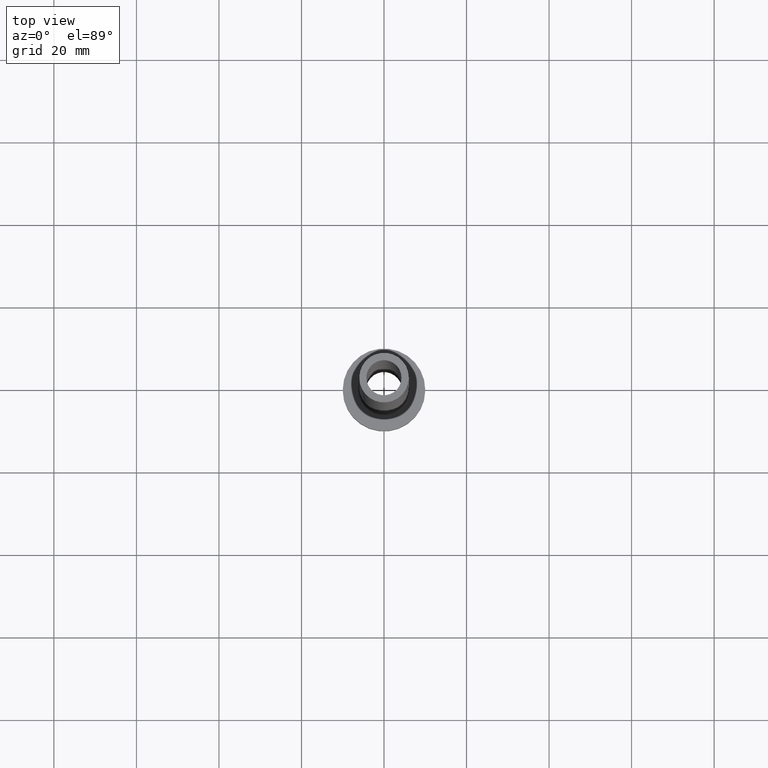
[diagram: clean part render]
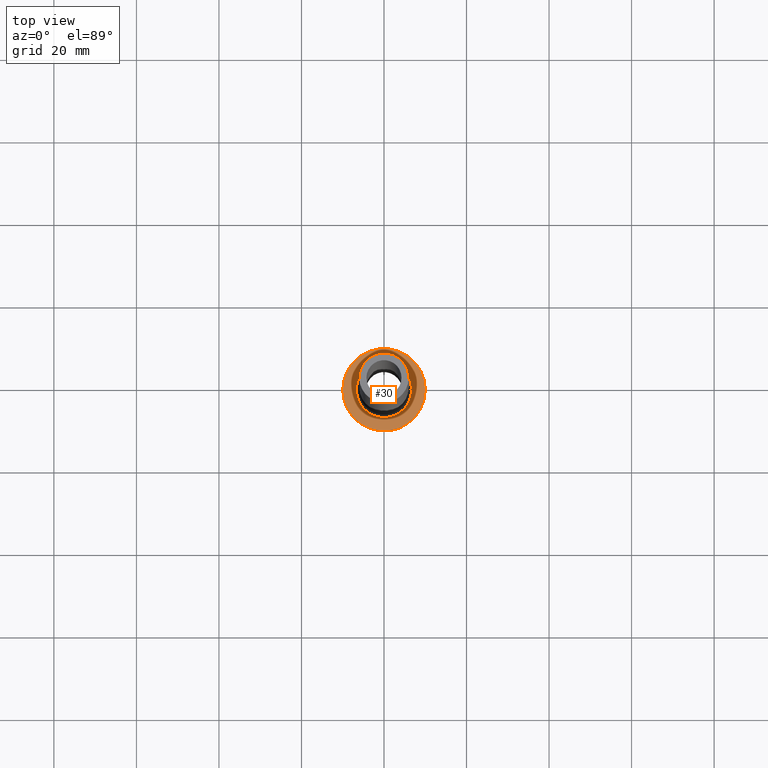
[diagram: same view with one face highlighted and labeled with its STEP entity id]
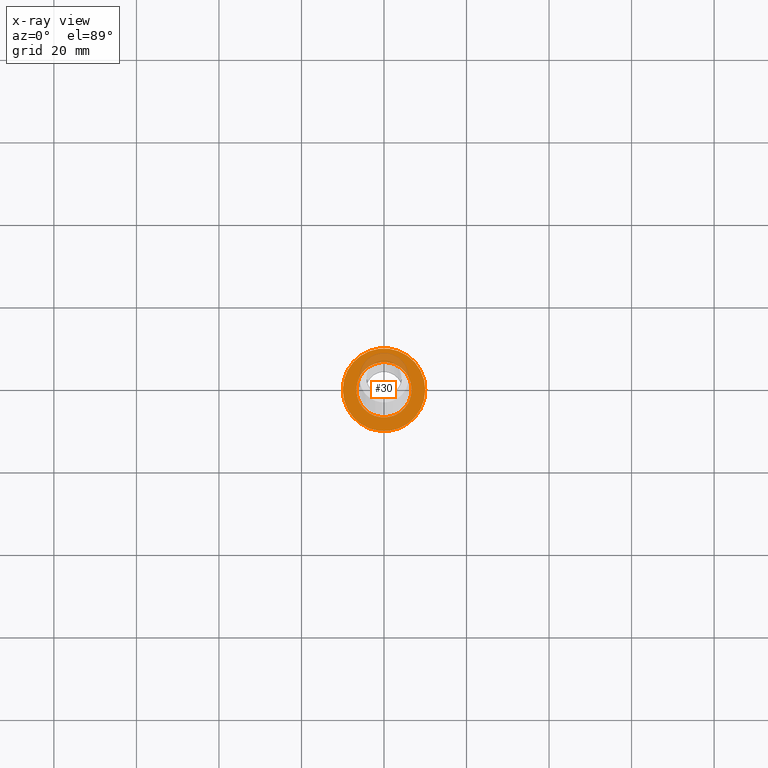
[diagram: x-ray of the same camera — body ghosted, the highlighted face saturated]
A machine part, top view. The second image highlights one B-rep face of the part: STEP entity #30.
The next image is the same camera in x-ray: the body ghosted, the highlighted face saturated — about 14% of this face is hidden behind the body in this view.
In plain terms, the highlighted planar face has unit normal (0, 0, 1).
Its self-contained STEP definition (entity closure, byte-faithful):
#7 = CARTESIAN_POINT ( 'NONE',  ( -6.700000000000001066, 8.205133554287267548E-16, 7.000000000000006217 ) ) ;
#10 = CARTESIAN_POINT ( 'NONE',  ( 10.00000000000000000, 1.224646799147353256E-15, 7.000000000000000000 ) ) ;
#28 = AXIS2_PLACEMENT_3D ( 'NONE', #337, #165, #298 ) ;
#30 = ADVANCED_FACE ( 'NONE', ( #255, #77 ), #363, .T. ) ;
#51 = CIRCLE ( 'NONE', #28, 10.00000000000000000 ) ;
#55 = VERTEX_POINT ( 'NONE', #222 ) ;
#71 = ORIENTED_EDGE ( 'NONE', *, *, #264, .T. ) ;
#77 = FACE_OUTER_BOUND ( 'NONE', #125, .T. ) ;
#79 = DIRECTION ( 'NONE',  ( 0.000000000000000000, 0.000000000000000000, 1.000000000000000000 ) ) ;
#81 = CARTESIAN_POINT ( 'NONE',  ( -10.00000000000000000, 0.000000000000000000, 7.000000000000000000 ) ) ;
#95 = VERTEX_POINT ( 'NONE', #81 ) ;
#109 = CIRCLE ( 'NONE', #426, 6.700000000000001066 ) ;
#125 = EDGE_LOOP ( 'NONE', ( #346, #278 ) ) ;
#136 = DIRECTION ( 'NONE',  ( 1.000000000000000000, 0.000000000000000000, 0.000000000000000000 ) ) ;
#165 = DIRECTION ( 'NONE',  ( 0.000000000000000000, 0.000000000000000000, 1.000000000000000000 ) ) ;
#170 = VERTEX_POINT ( 'NONE', #10 ) ;
#172 = CARTESIAN_POINT ( 'NONE',  ( 0.000000000000000000, 0.000000000000000000, 7.000000000000000000 ) ) ;
#184 = DIRECTION ( 'NONE',  ( 1.000000000000000000, 0.000000000000000000, -0.000000000000000000 ) ) ;
#222 = CARTESIAN_POINT ( 'NONE',  ( 6.700000000000001066, 0.000000000000000000, 7.000000000000006217 ) ) ;
#228 = AXIS2_PLACEMENT_3D ( 'NONE', #361, #394, #184 ) ;
#242 = EDGE_CURVE ( 'NONE', #95, #170, #51, .T. ) ;
#251 = CARTESIAN_POINT ( 'NONE',  ( 0.000000000000000000, 0.000000000000000000, 7.000000000000000000 ) ) ;
#255 = FACE_BOUND ( 'NONE', #275, .T. ) ;
#264 = EDGE_CURVE ( 'NONE', #369, #55, #109, .T. ) ;
#275 = EDGE_LOOP ( 'NONE', ( #436, #71 ) ) ;
#278 = ORIENTED_EDGE ( 'NONE', *, *, #396, .T. ) ;
#286 = EDGE_CURVE ( 'NONE', #55, #369, #404, .T. ) ;
#298 = DIRECTION ( 'NONE',  ( 1.000000000000000000, 0.000000000000000000, 0.000000000000000000 ) ) ;
#329 = CARTESIAN_POINT ( 'NONE',  ( 0.000000000000000000, 0.000000000000000000, 7.000000000000000000 ) ) ;
#337 = CARTESIAN_POINT ( 'NONE',  ( 0.000000000000000000, 0.000000000000000000, 7.000000000000000000 ) ) ;
#346 = ORIENTED_EDGE ( 'NONE', *, *, #242, .T. ) ;
#361 = CARTESIAN_POINT ( 'NONE',  ( 0.000000000000000000, 0.000000000000000000, 7.000000000000000000 ) ) ;
#362 = DIRECTION ( 'NONE',  ( 1.000000000000000000, 0.000000000000000000, 0.000000000000000000 ) ) ;
#363 = PLANE ( 'NONE',  #228 ) ;
#369 = VERTEX_POINT ( 'NONE', #7 ) ;
#391 = AXIS2_PLACEMENT_3D ( 'NONE', #251, #79, #362 ) ;
#394 = DIRECTION ( 'NONE',  ( 0.000000000000000000, 0.000000000000000000, 1.000000000000000000 ) ) ;
#396 = EDGE_CURVE ( 'NONE', #170, #95, #424, .T. ) ;
#404 = CIRCLE ( 'NONE', #444, 6.700000000000001066 ) ;
#412 = DIRECTION ( 'NONE',  ( 1.000000000000000000, 0.000000000000000000, 0.000000000000000000 ) ) ;
#424 = CIRCLE ( 'NONE', #391, 10.00000000000000000 ) ;
#426 = AXIS2_PLACEMENT_3D ( 'NONE', #329, #435, #412 ) ;
#435 = DIRECTION ( 'NONE',  ( -0.000000000000000000, -0.000000000000000000, -1.000000000000000000 ) ) ;
#436 = ORIENTED_EDGE ( 'NONE', *, *, #286, .T. ) ;
#444 = AXIS2_PLACEMENT_3D ( 'NONE', #172, #454, #136 ) ;
#454 = DIRECTION ( 'NONE',  ( -0.000000000000000000, -0.000000000000000000, -1.000000000000000000 ) ) ;